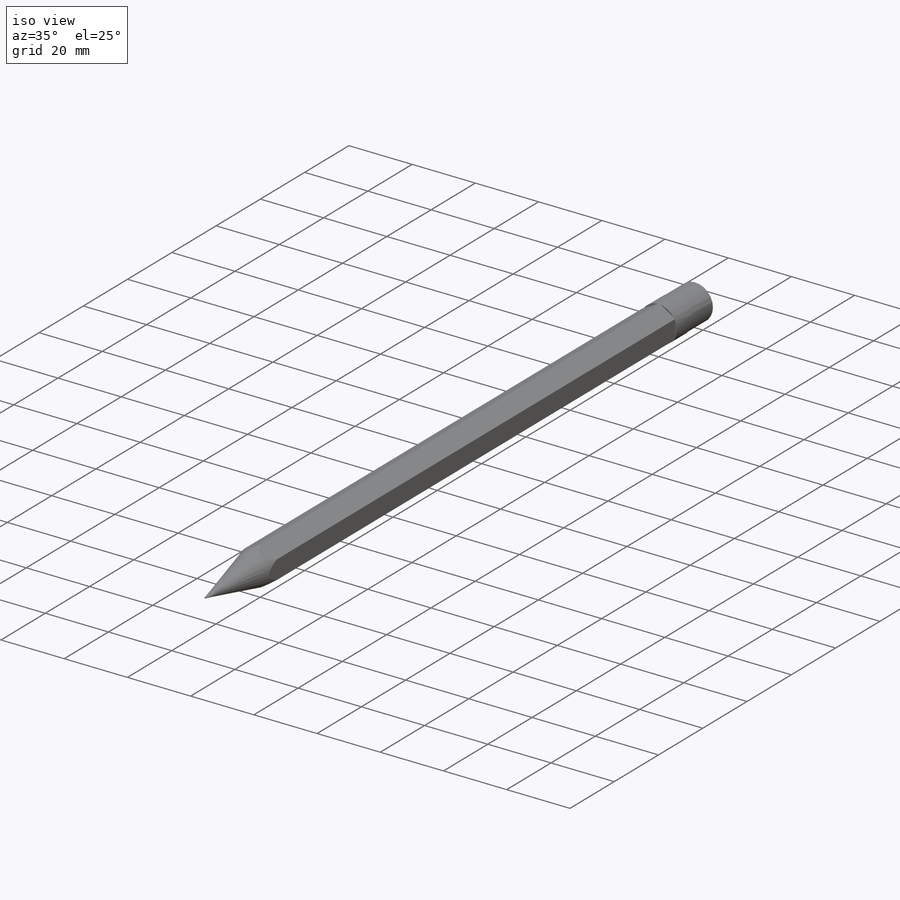
[diagram: iso view]
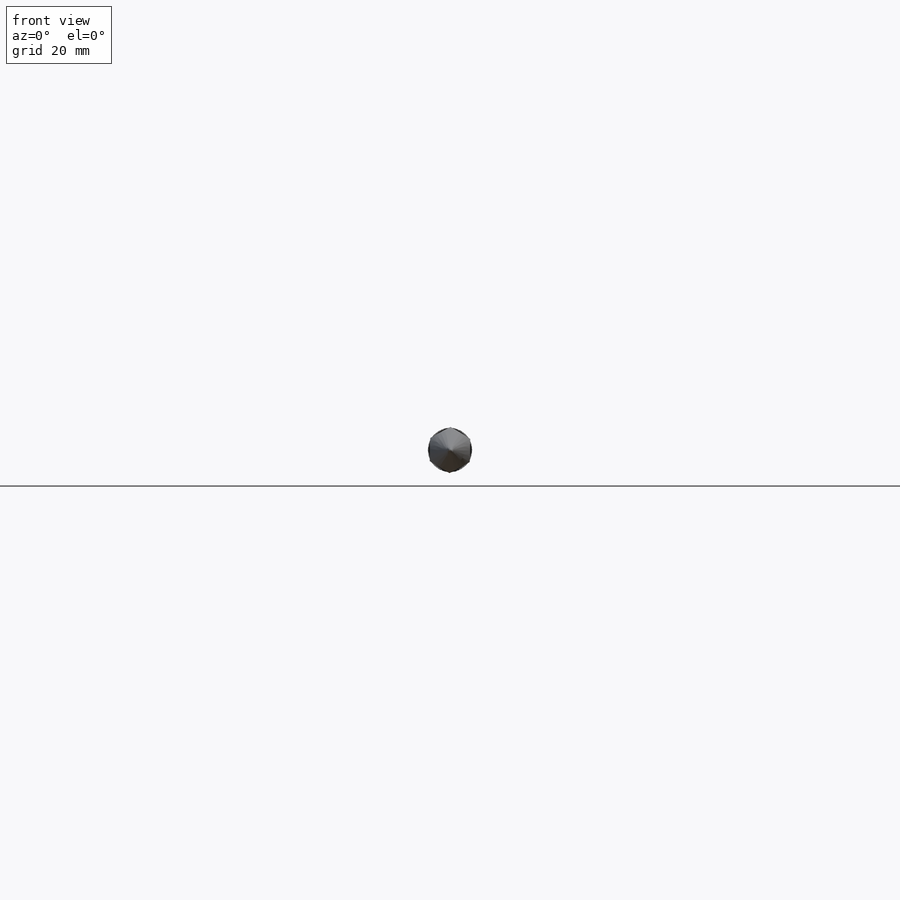
[diagram: front view]
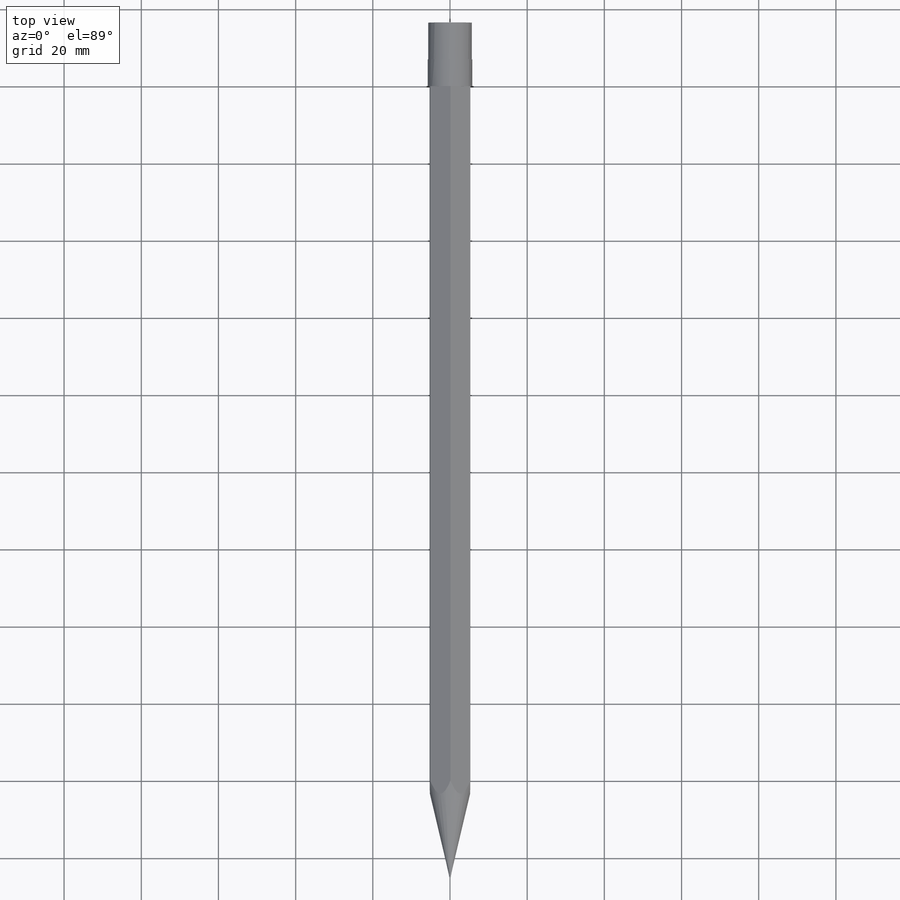
[diagram: top view]
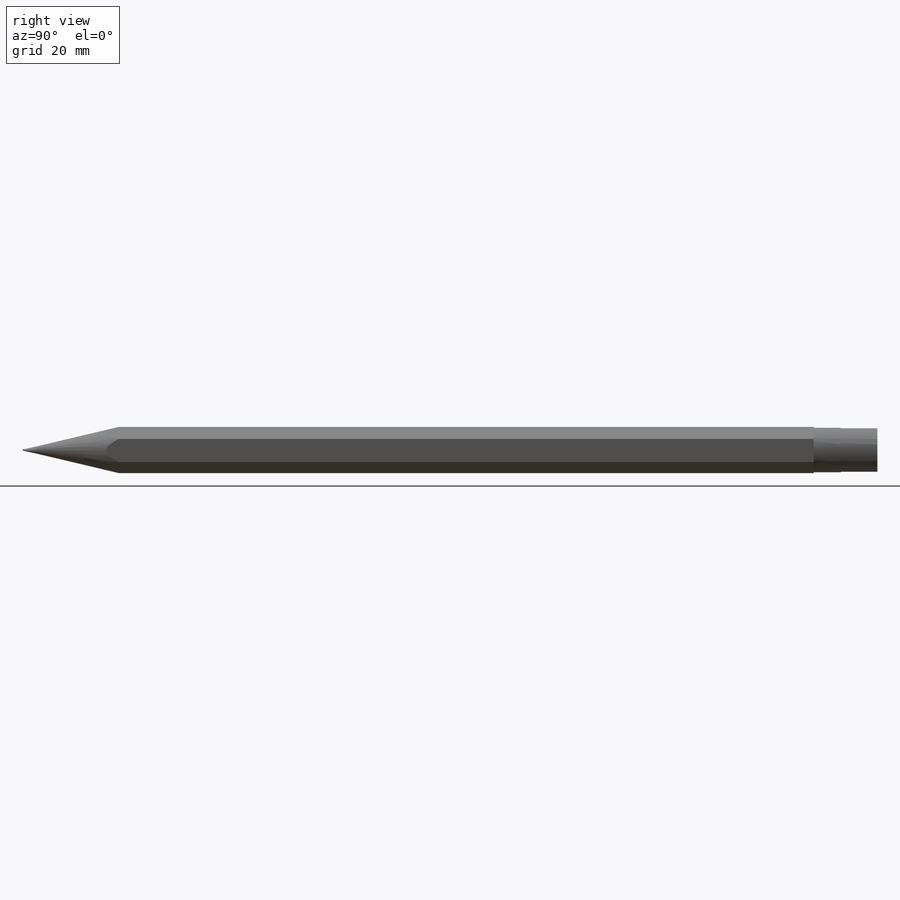
[diagram: right view]
SOLIDWORKS PART (.sldprt)
format: sldprt  version: not decoded by parser v0  size: 417,792 bytes
history: native  units: mm
features: sketch x7, extrude x3, cut_extrude x2, material x1, plane x1 (+12 scaffold rows collapsed)
feature tree (26):
  scaffold x12  (default folders/planes/origin — collapsed)
  material  "Material <not specified>"
  sketch  "Sketch2"  dims[D1=12.0mm]
  extrude  "Boss-Extrude1"  Depth=180mm
  plane  "Plane1"  Offset=205mm
  sketch  "Sketch3"  dims[D1=~0.351885mm]
  sketch  "Sketch5"
  cut_extrude  "Cut-Extrude1"  [1 undecoded]
  sketch  "Sketch8"
  sketch  "Sketch9"  dims[D1=~11.50084mm]
  extrude  "Boss-Extrude2"  Depth=7mm
  sketch  "Sketch10"  dims[D1=~11.32734mm]
  cut_extrude  "Cut-Extrude2"  Depth=7mm
  sketch  "Sketch11"  dims[D1=11.28mm]
  extrude  "Boss-Extrude3"  Depth=16.5mm
decode coverage: 9 of 12 modeling features carry decoded parameters
note: ~ marks probable driven/reference dimensions
note: 1 parameter value undecoded
note: suppression state not decoded; provenance and decode notes live in map.json
